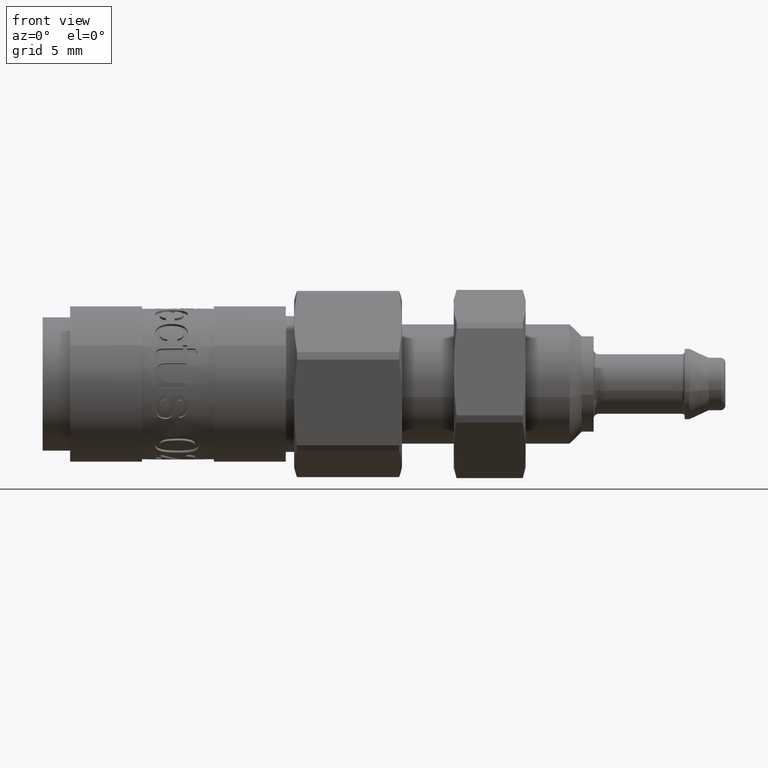
[diagram: clean part render]
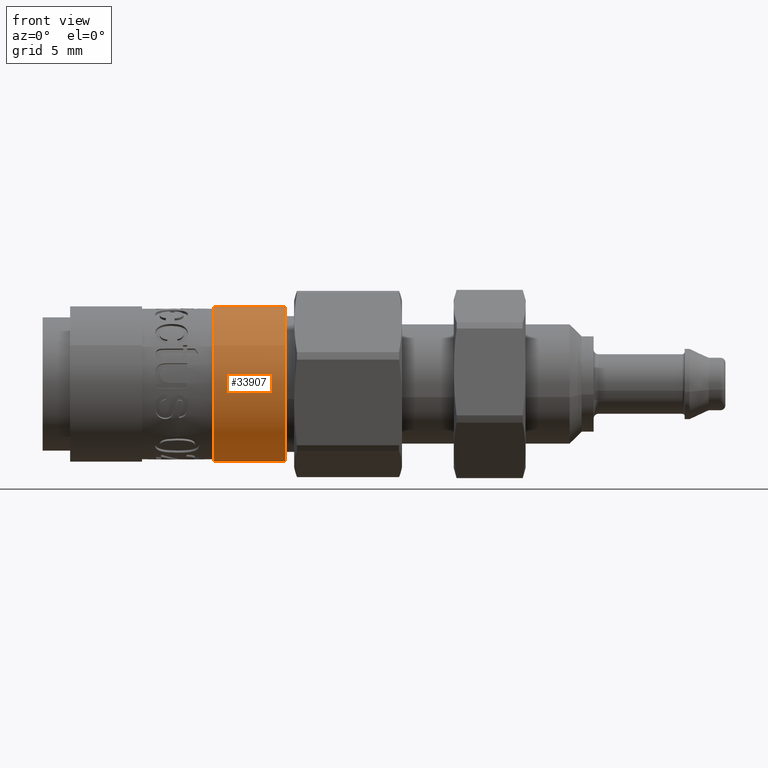
[diagram: same view with one face highlighted and labeled with its STEP entity id]
A machine part, front view. The second image highlights one B-rep face of the part: STEP entity #33907.
In plain terms, the highlighted cylindrical surface (bore or boss wall) has radius 3.25 mm, axis along (-1, -0, -0).
Its self-contained STEP definition (entity closure, byte-faithful):
#33880=CARTESIAN_POINT('',(8.650000000000006,-4.143069E-017,-1.666972E-015));
#33881=DIRECTION('',(-1.0,-2.762046E-017,-1.111315E-015));
#33882=DIRECTION('',(-5.289805E-016,-0.867432868270017,0.497554237289615));
#33883=AXIS2_PLACEMENT_3D('',#33880,#33881,#33882);
#33884=CYLINDRICAL_SURFACE('',#33883,3.25);
#33885=CARTESIAN_POINT('',(7.150000000000006,-2.819156821877557,1.617051271191246));
#33886=VERTEX_POINT('',#33885);
#33887=CARTESIAN_POINT('',(7.150000000000007,-8.286139E-017,-3.333945E-015));
#33888=DIRECTION('',(-1.0,4.588551E-016,-2.631965E-016));
#33889=DIRECTION('',(-5.289805E-016,-0.867432868270017,0.497554237289615));
#33890=AXIS2_PLACEMENT_3D('',#33887,#33888,#33889);
#33891=CIRCLE('',#33890,3.25);
#33892=EDGE_CURVE('',#33886,#33886,#33891,.T.);
#33893=ORIENTED_EDGE('',*,*,#33892,.F.);
#33894=EDGE_LOOP('',(#33893));
#33895=FACE_OUTER_BOUND('',#33894,.T.);
#33896=CARTESIAN_POINT('',(10.150000000000004,-2.819156821877557,1.61705127119125));
#33897=VERTEX_POINT('',#33896);
#33898=CARTESIAN_POINT('',(10.150000000000006,1.833369E-030,3.953977E-030));
#33899=DIRECTION('',(-1.0,4.588551E-016,-2.631965E-016));
#33900=DIRECTION('',(-5.289805E-016,-0.867432868270017,0.497554237289615));
#33901=AXIS2_PLACEMENT_3D('',#33898,#33899,#33900);
#33902=CIRCLE('',#33901,3.25);
#33903=EDGE_CURVE('',#33897,#33897,#33902,.T.);
#33904=ORIENTED_EDGE('',*,*,#33903,.T.);
#33905=EDGE_LOOP('',(#33904));
#33906=FACE_BOUND('',#33905,.T.);
#33907=ADVANCED_FACE('',(#33895,#33906),#33884,.T.);